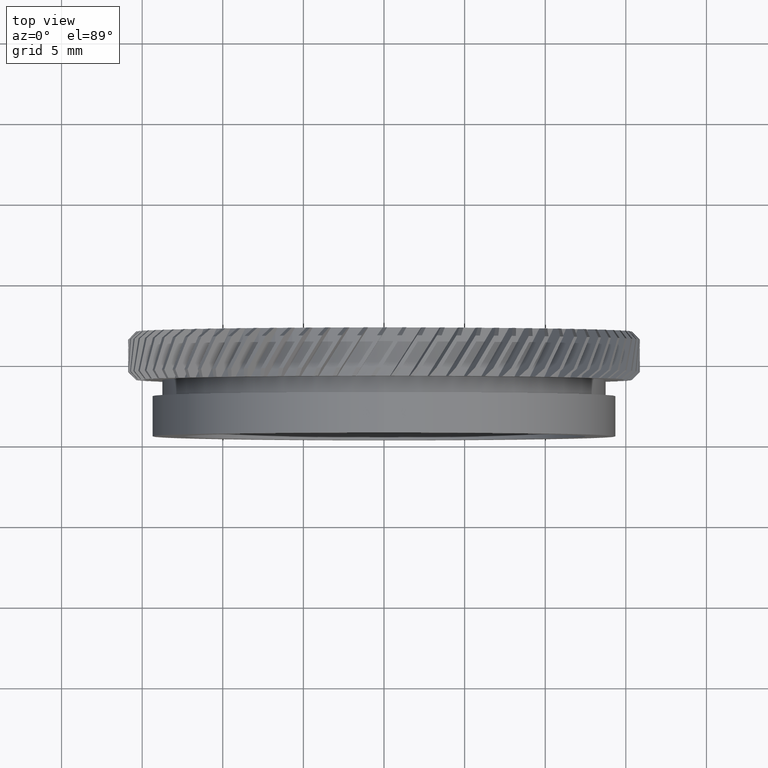
[diagram: clean part render]
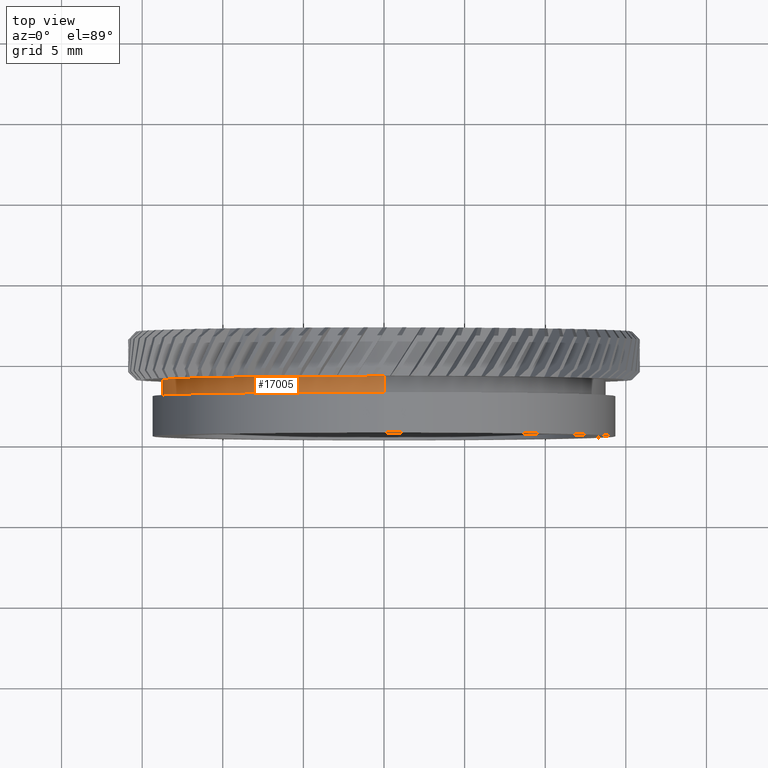
[diagram: same view with one face highlighted and labeled with its STEP entity id]
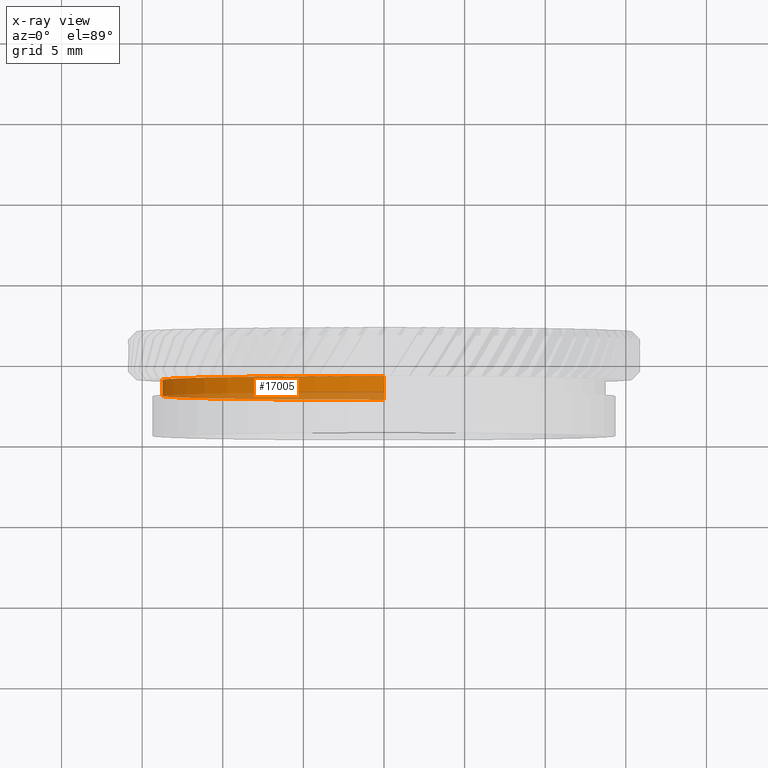
[diagram: x-ray of the same camera — body ghosted, the highlighted face saturated]
A machine part, top view. The second image highlights one B-rep face of the part: STEP entity #17005.
The next image is the same camera in x-ray: the body ghosted, the highlighted face saturated — about 27% of this face is hidden behind the body in this view.
In plain terms, the highlighted cylindrical surface (partial cylindrical patch) has radius 13.75 mm, axis along (-0, 1, -0).
Its self-contained STEP definition (entity closure, byte-faithful):
#832 = EDGE_CURVE ( 'NONE', #9515, #7754, #12089, .T. ) ;
#1217 = FACE_OUTER_BOUND ( 'NONE', #19012, .T. ) ;
#1562 = CARTESIAN_POINT ( 'NONE',  ( 0.0000000000000000000, 18.87125740523061500, 0.0000000000000000000 ) ) ;
#2298 = VERTEX_POINT ( 'NONE', #12046 ) ;
#3793 = EDGE_CURVE ( 'NONE', #8947, #9515, #6118, .T. ) ;
#4748 = AXIS2_PLACEMENT_3D ( 'NONE', #18864, #6422, #19145 ) ;
#5245 = EDGE_CURVE ( 'NONE', #8947, #2298, #16443, .T. ) ;
#6046 = ORIENTED_EDGE ( 'NONE', *, *, #3793, .F. ) ;
#6059 = DIRECTION ( 'NONE',  ( 0.0000000000000000000, 0.0000000000000000000, 1.000000000000000000 ) ) ;
#6118 = LINE ( 'NONE', #14196, #17990 ) ;
#6422 = DIRECTION ( 'NONE',  ( -0.0000000000000000000, 1.000000000000000000, -0.0000000000000000000 ) ) ;
#6424 = AXIS2_PLACEMENT_3D ( 'NONE', #13044, #19106, #14605 ) ;
#7754 = VERTEX_POINT ( 'NONE', #19409 ) ;
#8272 = DIRECTION ( 'NONE',  ( -0.0000000000000000000, 1.000000000000000000, -0.0000000000000000000 ) ) ;
#8773 = ORIENTED_EDGE ( 'NONE', *, *, #10921, .T. ) ;
#8947 = VERTEX_POINT ( 'NONE', #9994 ) ;
#9515 = VERTEX_POINT ( 'NONE', #12992 ) ;
#9714 = ORIENTED_EDGE ( 'NONE', *, *, #832, .F. ) ;
#9994 = CARTESIAN_POINT ( 'NONE',  ( 1.683889348827611400E-015, 17.87125740523061500, -13.75000000000000500 ) ) ;
#10215 = CYLINDRICAL_SURFACE ( 'NONE', #4748, 13.75000000000000500 ) ;
#10915 = DIRECTION ( 'NONE',  ( -0.0000000000000000000, 1.000000000000000000, -0.0000000000000000000 ) ) ;
#10921 = EDGE_CURVE ( 'NONE', #2298, #7754, #13654, .T. ) ;
#12046 = CARTESIAN_POINT ( 'NONE',  ( 0.0000000000000000000, 17.87125740523061500, 13.75000000000000500 ) ) ;
#12089 = CIRCLE ( 'NONE', #19048, 13.75000000000000500 ) ;
#12992 = CARTESIAN_POINT ( 'NONE',  ( 1.683889348827611400E-015, 18.87125740523061500, -13.75000000000000500 ) ) ;
#13044 = CARTESIAN_POINT ( 'NONE',  ( 0.0000000000000000000, 17.87125740523061500, 0.0000000000000000000 ) ) ;
#13602 = ORIENTED_EDGE ( 'NONE', *, *, #5245, .T. ) ;
#13654 = LINE ( 'NONE', #14681, #16797 ) ;
#14196 = CARTESIAN_POINT ( 'NONE',  ( 1.683889348827611400E-015, 66.62876213592232900, -13.75000000000000500 ) ) ;
#14605 = DIRECTION ( 'NONE',  ( 0.0000000000000000000, 0.0000000000000000000, 1.000000000000000000 ) ) ;
#14681 = CARTESIAN_POINT ( 'NONE',  ( 0.0000000000000000000, 66.62876213592232900, 13.75000000000000500 ) ) ;
#16443 = CIRCLE ( 'NONE', #6424, 13.75000000000000500 ) ;
#16797 = VECTOR ( 'NONE', #17807, 1000.000000000000000 ) ;
#17005 = ADVANCED_FACE ( 'NONE', ( #1217 ), #10215, .T. ) ;
#17807 = DIRECTION ( 'NONE',  ( -0.0000000000000000000, 1.000000000000000000, -0.0000000000000000000 ) ) ;
#17990 = VECTOR ( 'NONE', #8272, 1000.000000000000000 ) ;
#18864 = CARTESIAN_POINT ( 'NONE',  ( 0.0000000000000000000, 66.62876213592232900, 0.0000000000000000000 ) ) ;
#19012 = EDGE_LOOP ( 'NONE', ( #6046, #13602, #8773, #9714 ) ) ;
#19048 = AXIS2_PLACEMENT_3D ( 'NONE', #1562, #10915, #6059 ) ;
#19106 = DIRECTION ( 'NONE',  ( -0.0000000000000000000, 1.000000000000000000, -0.0000000000000000000 ) ) ;
#19145 = DIRECTION ( 'NONE',  ( 0.0000000000000000000, 0.0000000000000000000, 1.000000000000000000 ) ) ;
#19409 = CARTESIAN_POINT ( 'NONE',  ( 0.0000000000000000000, 18.87125740523061500, 13.75000000000000500 ) ) ;